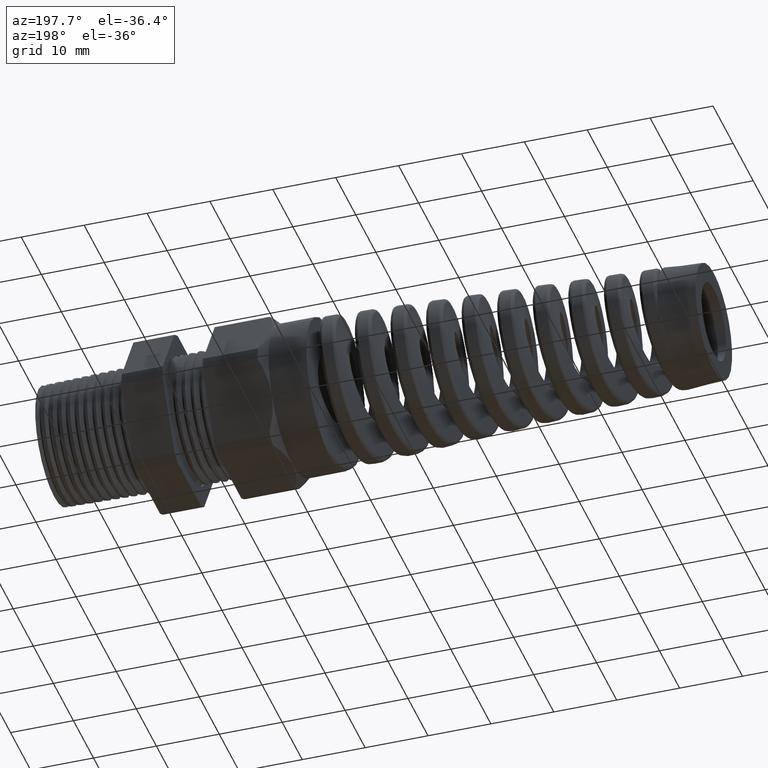
[diagram: clean part render]
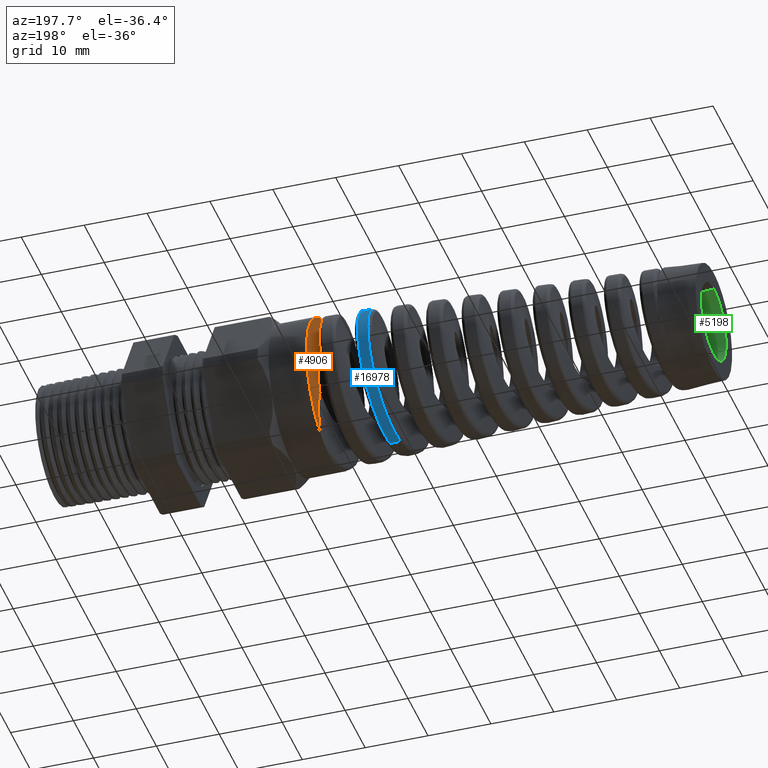
[diagram: same view with three faces highlighted in distinct colors, each labeled with its STEP entity id]
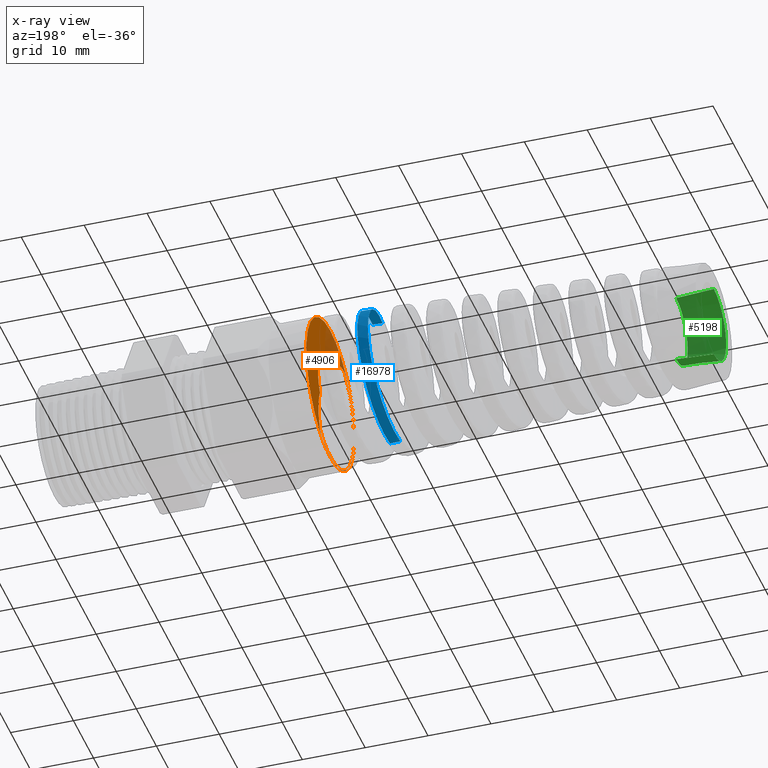
[diagram: x-ray of the same camera — body ghosted, the three highlighted faces saturated]
A machine part, auxiliary view with three faces highlighted in distinct colors.
The next image is the same camera in x-ray (body ghosted, the three faces saturated) — at least one of them is partly hidden behind the body in this view.
Their STEP definitions:

[orange] entity #4906 — the highlighted planar face has unit normal (-1, 0, 0).
#354 = CARTESIAN_POINT ( 'NONE',  ( -1.448820353894546600, 2.949912371775083200E-017, 0.2408786250720556800 ) ) ;
#355 = DIRECTION ( 'NONE',  ( 0.0000000000000000000, 0.0000000000000000000, 1.000000000000000000 ) ) ;
#356 = DIRECTION ( 'NONE',  ( -1.000000000000000000, 0.0000000000000000000, 0.0000000000000000000 ) ) ;
#357 = CARTESIAN_POINT ( 'NONE',  ( -1.448820353894546600, 0.0000000000000000000, 0.0000000000000000000 ) ) ;
#358 = AXIS2_PLACEMENT_3D ( 'NONE', #357, #356, #355 ) ;
#405 = CIRCLE ( 'NONE', #358, 0.2408786250720556800 ) ;
#454 = CARTESIAN_POINT ( 'NONE',  ( -1.448820353894546600, -0.03335962155743383400, 0.2385574305406326100 ) ) ;
#772 = EDGE_CURVE ( 'NONE', #7527, #7526, #4266, .T. ) ;
#4262 = DIRECTION ( 'NONE',  ( 0.0000000000000000000, 0.0000000000000000000, 1.000000000000000000 ) ) ;
#4263 = DIRECTION ( 'NONE',  ( -1.000000000000000000, 0.0000000000000000000, 0.0000000000000000000 ) ) ;
#4264 = CARTESIAN_POINT ( 'NONE',  ( -1.448820353894546600, 0.0000000000000000000, 0.0000000000000000000 ) ) ;
#4265 = AXIS2_PLACEMENT_3D ( 'NONE', #4264, #4263, #4262 ) ;
#4266 = CIRCLE ( 'NONE', #4265, 0.4699999999999999200 ) ;
#4828 = ORIENTED_EDGE ( 'NONE', *, *, #5226, .F. ) ;
#4829 = ORIENTED_EDGE ( 'NONE', *, *, #4830, .T. ) ;
#4830 = EDGE_CURVE ( 'NONE', #5220, #4831, #16705, .T. ) ;
#4831 = VERTEX_POINT ( 'NONE', #16704 ) ;
#4832 = ORIENTED_EDGE ( 'NONE', *, *, #4888, .T. ) ;
#4833 = VERTEX_POINT ( 'NONE', #16706 ) ;
#4888 = EDGE_CURVE ( 'NONE', #4831, #4833, #16743, .T. ) ;
#4889 = ORIENTED_EDGE ( 'NONE', *, *, #4890, .T. ) ;
#4890 = EDGE_CURVE ( 'NONE', #4833, #4891, #16801, .T. ) ;
#4891 = VERTEX_POINT ( 'NONE', #16796 ) ;
#4892 = ORIENTED_EDGE ( 'NONE', *, *, #4893, .T. ) ;
#4893 = EDGE_CURVE ( 'NONE', #4891, #4894, #16774, .T. ) ;
#4894 = VERTEX_POINT ( 'NONE', #16773 ) ;
#4895 = ORIENTED_EDGE ( 'NONE', *, *, #4896, .T. ) ;
#4896 = EDGE_CURVE ( 'NONE', #4894, #5282, #16882, .T. ) ;
#4897 = ORIENTED_EDGE ( 'NONE', *, *, #5281, .F. ) ;
#4898 = EDGE_LOOP ( 'NONE', ( #4899, #4900 ) ) ;
#4899 = ORIENTED_EDGE ( 'NONE', *, *, #772, .T. ) ;
#4900 = ORIENTED_EDGE ( 'NONE', *, *, #7579, .T. ) ;
#4906 = ADVANCED_FACE ( 'NONE', ( #16884, #16883 ), #16881, .T. ) ;
#4907 = EDGE_LOOP ( 'NONE', ( #4828, #4829, #4832, #4889, #4892, #4895, #4897 ) ) ;
#5220 = VERTEX_POINT ( 'NONE', #454 ) ;
#5226 = EDGE_CURVE ( 'NONE', #5220, #5227, #405, .T. ) ;
#5227 = VERTEX_POINT ( 'NONE', #354 ) ;
#5281 = EDGE_CURVE ( 'NONE', #5227, #5282, #7751, .T. ) ;
#5282 = VERTEX_POINT ( 'NONE', #7752 ) ;
#7526 = VERTEX_POINT ( 'NONE', #11925 ) ;
#7527 = VERTEX_POINT ( 'NONE', #11924 ) ;
#7579 = EDGE_CURVE ( 'NONE', #7526, #7527, #11949, .T. ) ;
#7747 = DIRECTION ( 'NONE',  ( 0.0000000000000000000, 0.0000000000000000000, 1.000000000000000000 ) ) ;
#7748 = DIRECTION ( 'NONE',  ( -1.000000000000000000, 0.0000000000000000000, 0.0000000000000000000 ) ) ;
#7749 = CARTESIAN_POINT ( 'NONE',  ( -1.448820353894546600, 0.0000000000000000000, 0.0000000000000000000 ) ) ;
#7750 = AXIS2_PLACEMENT_3D ( 'NONE', #7749, #7748, #7747 ) ;
#7751 = CIRCLE ( 'NONE', #7750, 0.2408786250720556800 ) ;
#7752 = CARTESIAN_POINT ( 'NONE',  ( -1.448820353894546300, 0.2021601561867379400, -0.1309724523216911400 ) ) ;
#11924 = CARTESIAN_POINT ( 'NONE',  ( -1.448820353894546600, 0.0000000000000000000, -0.4699999999999999200 ) ) ;
#11925 = CARTESIAN_POINT ( 'NONE',  ( -1.448820353894546600, 5.755839955992559700E-017, 0.4699999999999999200 ) ) ;
#11946 = DIRECTION ( 'NONE',  ( 0.0000000000000000000, 0.0000000000000000000, 1.000000000000000000 ) ) ;
#11947 = DIRECTION ( 'NONE',  ( -1.000000000000000000, 0.0000000000000000000, 0.0000000000000000000 ) ) ;
#11948 = AXIS2_PLACEMENT_3D ( 'NONE', #11955, #11947, #11946 ) ;
#11949 = CIRCLE ( 'NONE', #11948, 0.4699999999999999200 ) ;
#11955 = CARTESIAN_POINT ( 'NONE',  ( -1.448820353894546600, 0.0000000000000000000, 0.0000000000000000000 ) ) ;
#15977 = CARTESIAN_POINT ( 'NONE',  ( -1.448820353894546600, 0.2020614904284348500, -0.4038720716997567500 ) ) ;
#15979 = CARTESIAN_POINT ( 'NONE',  ( -1.448820353894546800, 0.1961061755179350500, -0.4091813848875616200 ) ) ;
#15982 = CARTESIAN_POINT ( 'NONE',  ( -1.448820353894546300, 0.2011171416932737400, -0.4048065078539921400 ) ) ;
#15983 = CARTESIAN_POINT ( 'NONE',  ( -1.448820353894546600, 0.009580785480131354500, -0.4667462132190382000 ) ) ;
#15989 = CARTESIAN_POINT ( 'NONE',  ( -1.448820353894545900, 0.2051431204508301100, -0.3995559992674126400 ) ) ;
#15990 = CARTESIAN_POINT ( 'NONE',  ( -1.448820353894546800, 0.1852642701325114000, -0.4168786529739144100 ) ) ;
#15991 = CARTESIAN_POINT ( 'NONE',  ( -1.448820353894546600, 0.2038085467612479900, -0.4018648567178028700 ) ) ;
#15992 = CARTESIAN_POINT ( 'NONE',  ( -1.448820353894546800, 0.1716136678479203700, -0.4251129430816107400 ) ) ;
#15993 = CARTESIAN_POINT ( 'NONE',  ( -1.448820353894546600, 0.1128127490869487900, -0.4493090088299454000 ) ) ;
#15996 = CARTESIAN_POINT ( 'NONE',  ( -1.448820353894546300, 0.1427345852049202700, -0.4386438970424701400 ) ) ;
#15997 = CARTESIAN_POINT ( 'NONE',  ( -1.448820353894546600, 0.1621148569472861700, -0.4299428423449827600 ) ) ;
#15998 = CARTESIAN_POINT ( 'NONE',  ( -1.448820353894546600, 0.1027283960472076300, -0.4522496813160216700 ) ) ;
#16001 = CARTESIAN_POINT ( 'NONE',  ( -1.448820353894546800, 0.05155632327928163400, -0.4631929127222383400 ) ) ;
#16002 = CARTESIAN_POINT ( 'NONE',  ( -1.448820353894546600, 0.2046563651635453800, -0.4008139720980719600 ) ) ;
#16005 = CARTESIAN_POINT ( 'NONE',  ( -1.448820353894546600, 0.07222455385863065000, -0.4598149112405836600 ) ) ;
#16006 = CARTESIAN_POINT ( 'NONE',  ( -1.448820353894546600, 0.1897293611852609600, -0.4139677696131632300 ) ) ;
#16007 = CARTESIAN_POINT ( 'NONE',  ( -1.448820353894546600, 0.1327989262014308600, -0.4425129285515522800 ) ) ;
#16008 = CARTESIAN_POINT ( 'NONE',  ( -1.448820353894546600, 0.1981861122203166200, -0.4075141148318242600 ) ) ;
#16688 = CARTESIAN_POINT ( 'NONE',  ( -1.448820353894461500, -0.2721263528142422400, 0.3551348036856661300 ) ) ;
#16689 = CARTESIAN_POINT ( 'NONE',  ( -1.448820353894545900, -0.2493149174953376300, 0.3533600258025658700 ) ) ;
#16690 = CARTESIAN_POINT ( 'NONE',  ( -1.448820353894546800, -0.2269148690472160800, 0.3497403473172283100 ) ) ;
#16691 = CARTESIAN_POINT ( 'NONE',  ( -1.448820353894546300, -0.1939723128528591500, 0.3413621391178656200 ) ) ;
#16692 = CARTESIAN_POINT ( 'NONE',  ( -1.448820353894547000, -0.1831016970211133100, 0.3380750389694154300 ) ) ;
#16693 = CARTESIAN_POINT ( 'NONE',  ( -1.448820353894546600, -0.1615977448715757700, 0.3304367378241687100 ) ) ;
#16694 = CARTESIAN_POINT ( 'NONE',  ( -1.448820353894546800, -0.1509582700809000400, 0.3260754442274743600 ) ) ;
#16695 = CARTESIAN_POINT ( 'NONE',  ( -1.448820353894546600, -0.1200431909144627600, 0.3115489787078768400 ) ) ;
#16696 = CARTESIAN_POINT ( 'NONE',  ( -1.448820353894545700, -0.1005495694154866600, 0.2998972208566764700 ) ) ;
#16697 = CARTESIAN_POINT ( 'NONE',  ( -1.448820353894545900, -0.06411974060964961700, 0.2720868642342828500 ) ) ;
#16698 = CARTESIAN_POINT ( 'NONE',  ( -1.448820353894545900, -0.04767586130611412700, 0.2562804781732810900 ) ) ;
#16699 = CARTESIAN_POINT ( 'NONE',  ( -1.448820353894546600, -0.03335962155743383400, 0.2385574305406326100 ) ) ;
#16704 = CARTESIAN_POINT ( 'NONE',  ( -1.448820353894461500, -0.2721263528142422400, 0.3551348036856661300 ) ) ;
#16705 = B_SPLINE_CURVE_WITH_KNOTS ( 'NONE', 3,
 ( #16699, #16698, #16697, #16696, #16695, #16694, #16693, #16692, #16691, #16690, #16689, #16688 ),
 .UNSPECIFIED., .F., .F.,
 ( 4, 2, 2, 2, 2, 4 ),
 ( 0.0004915076693157270500, 0.002221967812002094500, 0.003952427954688461600, 0.004817658026031645400, 0.005682888097374829200, 0.007413348240061196800 ),
 .UNSPECIFIED. ) ;
#16706 = CARTESIAN_POINT ( 'NONE',  ( -1.448820353894546600, -0.4428089962230025700, 0.1469596787728060500 ) ) ;
#16743 = B_SPLINE_CURVE_WITH_KNOTS ( 'NONE', 3,
 ( #16795, #16794, #16793, #16792, #16791, #16790, #16789, #16788, #16787, #16786, #16785, #16784, #16783, #16782, #16781, #16780, #16779, #16778, #16777, #16776 ),
 .UNSPECIFIED., .F., .F.,
 ( 4, 2, 2, 2, 2, 2, 2, 2, 2, 4 ),
 ( 8.673617379884034500E-019, 0.0001109991483392927300, 0.0002219982966785845800, 0.0004439965933571662900, 0.0008879931867143322600, 0.001775986373428669300, 0.002663979560143006100, 0.003551972746857343400, 0.005327959120286022600, 0.007103945493714701500 ),
 .UNSPECIFIED. ) ;
#16772 = CARTESIAN_POINT ( 'NONE',  ( -1.448820353894597400, -0.01175721740759511100, -0.4668936745595238500 ) ) ;
#16773 = CARTESIAN_POINT ( 'NONE',  ( -1.448820353894545900, 0.2051431204508301100, -0.3995559992674126400 ) ) ;
#16774 = B_SPLINE_CURVE_WITH_KNOTS ( 'NONE', 3,
 ( #16775, #16772, #15983, #16001, #16005, #15998, #15993, #16007, #15996, #15997, #15992, #15990, #16006, #15979, #16008, #15982, #15977, #15991, #16002, #15989 ),
 .UNSPECIFIED., .F., .F.,
 ( 4, 2, 2, 2, 2, 2, 2, 2, 2, 4 ),
 ( 0.0000000000000000000, 0.001616291713955990200, 0.003232583427911980400, 0.004040729284889974300, 0.004848875141867968600, 0.005657020998845963900, 0.006061093927334960600, 0.006263130391579461100, 0.006364148623701711800, 0.006465166855823962500 ),
 .UNSPECIFIED. ) ;
#16775 = CARTESIAN_POINT ( 'NONE',  ( -1.448820353894597600, -0.03294053930283547700, -0.4653943222595928700 ) ) ;
#16776 = CARTESIAN_POINT ( 'NONE',  ( -1.448820353894546600, -0.4428089962230025700, 0.1469596787728060500 ) ) ;
#16777 = CARTESIAN_POINT ( 'NONE',  ( -1.448820353894545900, -0.4354923246232088000, 0.1690057803555805900 ) ) ;
#16778 = CARTESIAN_POINT ( 'NONE',  ( -1.448820353894546800, -0.4263060439832192000, 0.1904154309027992500 ) ) ;
#16779 = CARTESIAN_POINT ( 'NONE',  ( -1.448820353894546300, -0.4047252417156458900, 0.2309619726242103900 ) ) ;
#16780 = CARTESIAN_POINT ( 'NONE',  ( -1.448820353894546800, -0.3923047213816414600, 0.2502255226187223300 ) ) ;
#16781 = CARTESIAN_POINT ( 'NONE',  ( -1.448820353894546300, -0.3710821870084007300, 0.2775154754607221900 ) ) ;
#16782 = CARTESIAN_POINT ( 'NONE',  ( -1.448820353894546800, -0.3635344296179492400, 0.2863819504981280900 ) ) ;
#16783 = CARTESIAN_POINT ( 'NONE',  ( -1.448820353894546600, -0.3476966869114141400, 0.3032922236084568700 ) ) ;
#16784 = CARTESIAN_POINT ( 'NONE',  ( -1.448820353894547000, -0.3394192806897227100, 0.3113361504279737500 ) ) ;
#16785 = CARTESIAN_POINT ( 'NONE',  ( -1.448820353894546600, -0.3220636809174137200, 0.3265055674661684900 ) ) ;
#16786 = CARTESIAN_POINT ( 'NONE',  ( -1.448820353894547000, -0.3130018644619247900, 0.3336498408536579500 ) ) ;
#16787 = CARTESIAN_POINT ( 'NONE',  ( -1.448820353894546600, -0.2985559787533573200, 0.3433877460512957400 ) ) ;
#16788 = CARTESIAN_POINT ( 'NONE',  ( -1.448820353894546300, -0.2935851537153360000, 0.3464841714009659300 ) ) ;
#16789 = CARTESIAN_POINT ( 'NONE',  ( -1.448820353894546600, -0.2858891781379445700, 0.3505982104636064500 ) ) ;
#16790 = CARTESIAN_POINT ( 'NONE',  ( -1.448820353894546600, -0.2832821755531561000, 0.3518874877695071200 ) ) ;
#16791 = CARTESIAN_POINT ( 'NONE',  ( -1.448820353894545900, -0.2792349663209615100, 0.3535522103417446100 ) ) ;
#16792 = CARTESIAN_POINT ( 'NONE',  ( -1.448820353894546600, -0.2778542707668484900, 0.3540662984631569600 ) ) ;
#16793 = CARTESIAN_POINT ( 'NONE',  ( -1.448820353894546600, -0.2750427540938603100, 0.3548814760643455600 ) ) ;
#16794 = CARTESIAN_POINT ( 'NONE',  ( -1.448820353894461700, -0.2736300380557659100, 0.3552517935757610300 ) ) ;
#16795 = CARTESIAN_POINT ( 'NONE',  ( -1.448820353894461500, -0.2721263528142422400, 0.3551348036856661300 ) ) ;
#16796 = CARTESIAN_POINT ( 'NONE',  ( -1.448820353894597600, -0.03294053930283547700, -0.4653943222595928700 ) ) ;
#16797 = DIRECTION ( 'NONE',  ( 0.0000000000000000000, 0.0000000000000000000, 1.000000000000000000 ) ) ;
#16798 = DIRECTION ( 'NONE',  ( 1.000000000000000000, 0.0000000000000000000, 0.0000000000000000000 ) ) ;
#16799 = CARTESIAN_POINT ( 'NONE',  ( -1.448820353894546600, 0.0000000000000000000, 0.0000000000000000000 ) ) ;
#16800 = AXIS2_PLACEMENT_3D ( 'NONE', #16799, #16798, #16797 ) ;
#16801 = CIRCLE ( 'NONE', #16800, 0.4665586290285814200 ) ;
#16863 = DIRECTION ( 'NONE',  ( 0.0000000000000000000, 0.0000000000000000000, 1.000000000000000000 ) ) ;
#16864 = DIRECTION ( 'NONE',  ( -1.000000000000000000, 0.0000000000000000000, 0.0000000000000000000 ) ) ;
#16865 = CARTESIAN_POINT ( 'NONE',  ( -1.448820353894546300, 0.2021601561867379400, -0.1309724523216911400 ) ) ;
#16866 = CARTESIAN_POINT ( 'NONE',  ( -1.448820353894545700, 0.2072231517698748500, -0.1413642909500169600 ) ) ;
#16867 = CARTESIAN_POINT ( 'NONE',  ( -1.448820353894546300, 0.2116043623677465500, -0.1520479544771982100 ) ) ;
#16868 = CARTESIAN_POINT ( 'NONE',  ( -1.448820353894546600, 0.2190726070071457900, -0.1739692288181992100 ) ) ;
#16869 = CARTESIAN_POINT ( 'NONE',  ( -1.448820353894545900, 0.2221528326000351300, -0.1852275250048633600 ) ) ;
#16870 = CARTESIAN_POINT ( 'NONE',  ( -1.448820353894545900, 0.2293500224318219000, -0.2189832126127909400 ) ) ;
#16871 = CARTESIAN_POINT ( 'NONE',  ( -1.448820353894546600, 0.2315534931123896800, -0.2417313462586490900 ) ) ;
#16872 = CARTESIAN_POINT ( 'NONE',  ( -1.448820353894545900, 0.2314191754249948500, -0.2761774508687775400 ) ) ;
#16873 = CARTESIAN_POINT ( 'NONE',  ( -1.448820353894546300, 0.2307886175061127600, -0.2877682314581507300 ) ) ;
#16874 = CARTESIAN_POINT ( 'NONE',  ( -1.448820353894546800, 0.2284140730746141700, -0.3107897675158301500 ) ) ;
#16875 = CARTESIAN_POINT ( 'NONE',  ( -1.448820353894546600, 0.2266818306708347200, -0.3221691710708107800 ) ) ;
#16876 = CARTESIAN_POINT ( 'NONE',  ( -1.448820353894546300, 0.2199720318625012800, -0.3559426574653077900 ) ) ;
#16877 = CARTESIAN_POINT ( 'NONE',  ( -1.448820353894546600, 0.2134936076841694200, -0.3779749577527472000 ) ) ;
#16878 = CARTESIAN_POINT ( 'NONE',  ( -1.448820353894545900, 0.2051431204508301100, -0.3995559992674126400 ) ) ;
#16879 = CARTESIAN_POINT ( 'NONE',  ( -1.448820353894546600, 0.0000000000000000000, 0.0000000000000000000 ) ) ;
#16880 = AXIS2_PLACEMENT_3D ( 'NONE', #16879, #16864, #16863 ) ;
#16881 = PLANE ( 'NONE',  #16880 ) ;
#16882 = B_SPLINE_CURVE_WITH_KNOTS ( 'NONE', 3,
 ( #16878, #16877, #16876, #16875, #16874, #16873, #16872, #16871, #16870, #16869, #16868, #16867, #16866, #16865 ),
 .UNSPECIFIED., .F., .F.,
 ( 4, 2, 2, 2, 2, 2, 4 ),
 ( 0.0001419659841493560600, 0.001889761936196980800, 0.002763659912220792700, 0.003637557888244607700, 0.005385353840292238400, 0.006259251816316053300, 0.007133149792339868300 ),
 .UNSPECIFIED. ) ;
#16883 = FACE_OUTER_BOUND ( 'NONE', #4898, .T. ) ;
#16884 = FACE_BOUND ( 'NONE', #4907, .T. ) ;

[blue] entity #16978 — the highlighted conical surface has half-angle 2.5 deg.
#14116 = DIRECTION ( 'NONE',  ( 0.9990482215818576900, 0.0000000000000000000, -0.04361938736533631200 ) ) ;
#14117 = VECTOR ( 'NONE', #14116, 39.37007874015748100 ) ;
#14119 = CARTESIAN_POINT ( 'NONE',  ( -1.369999999999999900, 0.0000000000000000000, -0.4699999999999999700 ) ) ;
#14120 = LINE ( 'NONE', #14119, #14117 ) ;
#14131 = CARTESIAN_POINT ( 'NONE',  ( -1.822040881429618700, 5.096541791137408800E-013, -0.4502634688835878100 ) ) ;
#14303 = CARTESIAN_POINT ( 'NONE',  ( -1.761257017529631200, 0.4468046488174056100, 0.07564320165449360500 ) ) ;
#14304 = CARTESIAN_POINT ( 'NONE',  ( -1.757809340060459700, 0.4380420694168157800, 0.1194918324233043800 ) ) ;
#14307 = CARTESIAN_POINT ( 'NONE',  ( -1.755544896219090300, 0.4294275797834336000, 0.1477263735582237100 ) ) ;
#14309 = CARTESIAN_POINT ( 'NONE',  ( -1.752128767299149700, 0.4124741950551973900, 0.1886215747762190800 ) ) ;
#14310 = CARTESIAN_POINT ( 'NONE',  ( -1.750987011449980800, 0.4061462922027455600, 0.2020088122152971800 ) ) ;
#14312 = CARTESIAN_POINT ( 'NONE',  ( -1.748687315151896000, 0.3920991509197268600, 0.2282798259128979200 ) ) ;
#14314 = CARTESIAN_POINT ( 'NONE',  ( -1.747533117465403200, 0.3843950883842104400, 0.2411159806779676100 ) ) ;
#14316 = CARTESIAN_POINT ( 'NONE',  ( -1.744108794239781300, 0.3596998520321175700, 0.2780393331708604400 ) ) ;
#14317 = CARTESIAN_POINT ( 'NONE',  ( -1.741851798874636700, 0.3409990863555979500, 0.3008319111185008300 ) ) ;
#14319 = CARTESIAN_POINT ( 'NONE',  ( -1.738430761906552200, 0.3095927995241541900, 0.3322794945339343500 ) ) ;
#14321 = CARTESIAN_POINT ( 'NONE',  ( -1.737278185216293300, 0.2984955114457807400, 0.3423529360480159200 ) ) ;
#14323 = CARTESIAN_POINT ( 'NONE',  ( -1.734985187286576200, 0.2754928615395048100, 0.3612474127370969300 ) ) ;
#14324 = CARTESIAN_POINT ( 'NONE',  ( -1.733845986557382500, 0.2636068129160392100, 0.3700658774771743400 ) ) ;
#14326 = CARTESIAN_POINT ( 'NONE',  ( -1.730435069461946100, 0.2268259046410669700, 0.3946841146902044800 ) ) ;
#14328 = CARTESIAN_POINT ( 'NONE',  ( -1.728172464612168600, 0.2008187379429952900, 0.4086642074342938200 ) ) ;
#14329 = CARTESIAN_POINT ( 'NONE',  ( -1.724733432000420400, 0.1595093044055275200, 0.4258643213729566000 ) ) ;
#14331 = CARTESIAN_POINT ( 'NONE',  ( -1.723587548133073100, 0.1454558669659717400, 0.4309154502506916700 ) ) ;
#14333 = CARTESIAN_POINT ( 'NONE',  ( -1.721313834762431700, 0.1171556922323973300, 0.4395569805197753200 ) ) ;
#14334 = CARTESIAN_POINT ( 'NONE',  ( -1.719049091902859600, 0.08855293848782874700, 0.4467841778985683900 ) ) ;
#14336 = CARTESIAN_POINT ( 'NONE',  ( -1.716779821678874100, 0.05935345605739934800, 0.4512138873614337000 ) ) ;
#14338 = CARTESIAN_POINT ( 'NONE',  ( -1.714498253804540800, 0.02985122258853168500, 0.4542205866170148100 ) ) ;
#14340 = CARTESIAN_POINT ( 'NONE',  ( -1.713345062118319900, 0.01486718116825785900, 0.4550092308449323300 ) ) ;
#14341 = CARTESIAN_POINT ( 'NONE',  ( -1.712202162727100900, -3.123575576925645000E-016, 0.4550591309100025500 ) ) ;
#14344 = B_SPLINE_CURVE_WITH_KNOTS ( 'NONE', 3,
 ( #14341, #14340, #14338, #14336, #14334, #14333, #14331, #14329, #14328, #14326, #14324, #14323, #14321, #14319, #14317, #14316, #14314, #14312, #14310, #14309, #14307, #14304, #14303, #14453, #14451, #14450, #14448, #14446, #14444, #14443, #14441, #14439, #14437, #14436, #14434, #14432, #14430, #14429, #14427, #14425, #14423, #14422, #14420, #14418, #14416, #14415, #14413, #14411, #14409, #14408, #14406 ),
 .UNSPECIFIED., .F., .F.,
 ( 4, 2, 1, 2, 2, 2, 2, 2, 2, 2, 2, 2, 2, 2, 2, 2, 2, 2, 2, 2, 2, 2, 2, 2, 2, 4 ),
 ( 0.08905529058756787900, 0.09019516613580699800, 0.09133504168404613100, 0.09247491723228525000, 0.09361479278052438300, 0.09589454387700263600, 0.09703441942524175500, 0.09817429497348087500, 0.1004540460699591300, 0.1015939216181982500, 0.1027337971664373800, 0.1050135482629156500, 0.1061534238111547700, 0.1072932993593939000, 0.1084331749076330300, 0.1095730504558721500, 0.1118528015523504200, 0.1129926771005895500, 0.1141325526488286700, 0.1164123037453069400, 0.1175521792935460600, 0.1186920548417851900, 0.1209718059382634500, 0.1232515570347416900, 0.1243914325829808300, 0.1255313081312199600 ),
 .UNSPECIFIED. ) ;
#14406 = CARTESIAN_POINT ( 'NONE',  ( -1.822040881429618700, 5.096541791137408800E-013, -0.4502634688835878100 ) ) ;
#14408 = CARTESIAN_POINT ( 'NONE',  ( -1.820888725403704300, 0.01482660269356085900, -0.4503137731020401800 ) ) ;
#14409 = CARTESIAN_POINT ( 'NONE',  ( -1.819723694093071400, 0.02981613453249858800, -0.4496224490667018500 ) ) ;
#14411 = CARTESIAN_POINT ( 'NONE',  ( -1.817413255509757300, 0.05941472726539403400, -0.4467774735191904500 ) ) ;
#14413 = CARTESIAN_POINT ( 'NONE',  ( -1.816266353222032200, 0.07404810415716121800, -0.4446332183724990300 ) ) ;
#14415 = CARTESIAN_POINT ( 'NONE',  ( -1.812834842442627000, 0.1174612847230464800, -0.4360874402533395600 ) ) ;
#14416 = CARTESIAN_POINT ( 'NONE',  ( -1.810558030640458900, 0.1457588041742681800, -0.4275936056121821800 ) ) ;
#14418 = CARTESIAN_POINT ( 'NONE',  ( -1.805925301917044300, 0.2010067982122463200, -0.4047969618383501200 ) ) ;
#14420 = CARTESIAN_POINT ( 'NONE',  ( -1.803638982228812100, 0.2271129035747718500, -0.3908333749850261800 ) ) ;
#14422 = CARTESIAN_POINT ( 'NONE',  ( -1.800207463913810100, 0.2639110067806945700, -0.3662853167088415100 ) ) ;
#14423 = CARTESIAN_POINT ( 'NONE',  ( -1.799062991647800000, 0.2757908807476774900, -0.3574934355952843500 ) ) ;
#14425 = CARTESIAN_POINT ( 'NONE',  ( -1.796763152266821500, 0.2987612584358542200, -0.3386657838725126200 ) ) ;
#14427 = CARTESIAN_POINT ( 'NONE',  ( -1.795602937065781800, 0.3098877725287075300, -0.3285846483813437100 ) ) ;
#14429 = CARTESIAN_POINT ( 'NONE',  ( -1.792158402279606900, 0.3413665899180348100, -0.2970923128867416500 ) ) ;
#14430 = CARTESIAN_POINT ( 'NONE',  ( -1.789888290174476800, 0.3600613127164527500, -0.2742876985444238100 ) ) ;
#14432 = CARTESIAN_POINT ( 'NONE',  ( -1.786453181611919800, 0.3847043150189813400, -0.2374027528945953900 ) ) ;
#14434 = CARTESIAN_POINT ( 'NONE',  ( -1.785300397845111000, 0.3923658138245882400, -0.2246248804979578100 ) ) ;
#14436 = CARTESIAN_POINT ( 'NONE',  ( -1.782987537946890700, 0.4064278728574680100, -0.1982799128091515800 ) ) ;
#14437 = CARTESIAN_POINT ( 'NONE',  ( -1.781840745804035700, 0.4127518020378896400, -0.1848646211026617200 ) ) ;
#14439 = CARTESIAN_POINT ( 'NONE',  ( -1.778415126010419700, 0.4296708817530234800, -0.1439149616349511600 ) ) ;
#14441 = CARTESIAN_POINT ( 'NONE',  ( -1.776149242625625100, 0.4382325317524674000, -0.1156835323093201300 ) ) ;
#14443 = CARTESIAN_POINT ( 'NONE',  ( -1.772702656988917500, 0.4469127987053060400, -0.07191572469992192600 ) ) ;
#14444 = CARTESIAN_POINT ( 'NONE',  ( -1.771545000956759900, 0.4490985224472414700, -0.05707590644910308400 ) ) ;
#14446 = CARTESIAN_POINT ( 'NONE',  ( -1.769253396093740000, 0.4519707447381270900, -0.02757063722723878900 ) ) ;
#14448 = CARTESIAN_POINT ( 'NONE',  ( -1.768113006146149400, 0.4526763912958216000, -0.01282363951911586600 ) ) ;
#14450 = CARTESIAN_POINT ( 'NONE',  ( -1.765833373785036900, 0.4526510390288336900, 0.01665853217129863900 ) ) ;
#14451 = CARTESIAN_POINT ( 'NONE',  ( -1.764694205077702600, 0.4519200225044957000, 0.03139371172882200100 ) ) ;
#14453 = CARTESIAN_POINT ( 'NONE',  ( -1.762408945642773400, 0.4490041543076420100, 0.06085147811858860500 ) ) ;
#14483 = DIRECTION ( 'NONE',  ( 0.0000000000000000000, 0.0000000000000000000, -1.000000000000000000 ) ) ;
#14485 = DIRECTION ( 'NONE',  ( 1.000000000000000000, 0.0000000000000000000, 0.0000000000000000000 ) ) ;
#14486 = AXIS2_PLACEMENT_3D ( 'NONE', #14492, #14485, #14483 ) ;
#14487 = CONICAL_SURFACE ( 'NONE', #14486, 0.4699999999999999700, 0.04363323129985854900 ) ;
#14492 = CARTESIAN_POINT ( 'NONE',  ( -1.369999999999999900, 0.0000000000000000000, 0.0000000000000000000 ) ) ;
#14494 = FACE_OUTER_BOUND ( 'NONE', #16935, .T. ) ;
#14520 = CARTESIAN_POINT ( 'NONE',  ( -1.792820941406120500, 0.1988492649791344900, 0.4056677219928064300 ) ) ;
#14522 = CARTESIAN_POINT ( 'NONE',  ( -1.795123748930672400, 0.2249751896484063200, 0.3916665763240070300 ) ) ;
#14524 = CARTESIAN_POINT ( 'NONE',  ( -1.796277561251411700, 0.2377074905555336100, 0.3840090508662502000 ) ) ;
#14525 = CARTESIAN_POINT ( 'NONE',  ( -1.799710113977904800, 0.2743710448449361300, 0.3594471000227311100 ) ) ;
#14527 = CARTESIAN_POINT ( 'NONE',  ( -1.801978560725075600, 0.2970170370024053900, 0.3408460617272124300 ) ) ;
#14529 = CARTESIAN_POINT ( 'NONE',  ( -1.805412118669837800, 0.3282728183314786400, 0.3095893740890358600 ) ) ;
#14531 = CARTESIAN_POINT ( 'NONE',  ( -1.806568844695134500, 0.3382864687117815800, 0.2985411728689125700 ) ) ;
#14532 = CARTESIAN_POINT ( 'NONE',  ( -1.808866668307090900, 0.3570379957348783200, 0.2756772849512071900 ) ) ;
#14534 = CARTESIAN_POINT ( 'NONE',  ( -1.810008619419166900, 0.3657909476262681300, 0.2638607620761887500 ) ) ;
#14536 = CARTESIAN_POINT ( 'NONE',  ( -1.813431109076586200, 0.3902261942890463700, 0.2272866995524978600 ) ) ;
#14538 = CARTESIAN_POINT ( 'NONE',  ( -1.815708743723587300, 0.4041024054702431200, 0.2014155119944505400 ) ) ;
#14539 = CARTESIAN_POINT ( 'NONE',  ( -1.819176657457186800, 0.4211589840344792700, 0.1602969573176711800 ) ) ;
#14541 = CARTESIAN_POINT ( 'NONE',  ( -1.820328692264962200, 0.4261506043476230300, 0.1463430287951748800 ) ) ;
#14543 = CARTESIAN_POINT ( 'NONE',  ( -1.822616448596078700, 0.4346919190309779200, 0.1182099850386352200 ) ) ;
#14545 = CARTESIAN_POINT ( 'NONE',  ( -1.823755601207184300, 0.4382585041826371800, 0.1039904201452412400 ) ) ;
#14546 = CARTESIAN_POINT ( 'NONE',  ( -1.826036772781427100, 0.4439960151253966600, 0.07524889754895963700 ) ) ;
#14547 = CARTESIAN_POINT ( 'NONE',  ( -1.827178774543248600, 0.4461669766969741400, 0.06072694622732851400 ) ) ;
#14548 = CARTESIAN_POINT ( 'NONE',  ( -1.829477377452833200, 0.4490857182916444000, 0.03137562240415629100 ) ) ;
#14549 = CARTESIAN_POINT ( 'NONE',  ( -1.830639824345830400, 0.4498288975311160500, 0.01647120109646450400 ) ) ;
#14550 = CARTESIAN_POINT ( 'NONE',  ( -1.834097027433388500, 0.4498456820445435600, -0.02783339042555219000 ) ) ;
#14551 = CARTESIAN_POINT ( 'NONE',  ( -1.836375001192944300, 0.4469753592167554100, -0.05700868907232146300 ) ) ;
#14552 = CARTESIAN_POINT ( 'NONE',  ( -1.840954720582554700, 0.4355620675289818000, -0.1146423709829998100 ) ) ;
#14553 = CARTESIAN_POINT ( 'NONE',  ( -1.843278971106104400, 0.4268766112418419000, -0.1433266641084317800 ) ) ;
#14554 = CARTESIAN_POINT ( 'NONE',  ( -1.847865248548406600, 0.4043941294649920900, -0.1976149052713792000 ) ) ;
#14556 = CARTESIAN_POINT ( 'NONE',  ( -1.850146549094456600, 0.3905934319534072300, -0.2234782159987053200 ) ) ;
#14557 = CARTESIAN_POINT ( 'NONE',  ( -1.853609845877750600, 0.3659932704884068000, -0.2603167648319740200 ) ) ;
#14558 = CARTESIAN_POINT ( 'NONE',  ( -1.854774442103824100, 0.3571010227573938000, -0.2723024884610597000 ) ) ;
#14559 = CARTESIAN_POINT ( 'NONE',  ( -1.857078012342326900, 0.3383744947954029900, -0.2950969554316275600 ) ) ;
#14560 = CARTESIAN_POINT ( 'NONE',  ( -1.859367802053903500, 0.3186331085548613200, -0.3168412661041222200 ) ) ;
#14561 = CARTESIAN_POINT ( 'NONE',  ( -1.861655404639487300, 0.2969017065881555100, -0.3365235379148861000 ) ) ;
#14562 = CARTESIAN_POINT ( 'NONE',  ( -1.863953750661532500, 0.2741662905825727500, -0.3551641187009429400 ) ) ;
#14563 = CARTESIAN_POINT ( 'NONE',  ( -1.865111706588957800, 0.2622602126448867500, -0.3639877056318873700 ) ) ;
#14564 = CARTESIAN_POINT ( 'NONE',  ( -1.868596673904356000, 0.2252163978269885700, -0.3886762126276427400 ) ) ;
#14565 = CARTESIAN_POINT ( 'NONE',  ( -1.870886266353911600, 0.1992898319177533200, -0.4024484950429665400 ) ) ;
#14566 = CARTESIAN_POINT ( 'NONE',  ( -1.874327267238889100, 0.1586217742556728600, -0.4192144358540829700 ) ) ;
#14567 = CARTESIAN_POINT ( 'NONE',  ( -1.875475889714674200, 0.1447672388968584400, -0.4241495367914016000 ) ) ;
#14569 = CARTESIAN_POINT ( 'NONE',  ( -1.877789337671541500, 0.1164463687440285000, -0.4326778800908756000 ) ) ;
#14570 = CARTESIAN_POINT ( 'NONE',  ( -1.878954340285434700, 0.1019756798815294600, -0.4362609472457341100 ) ) ;
#14571 = CARTESIAN_POINT ( 'NONE',  ( -1.882414686143368800, 0.05860567167067742800, -0.4447513418945646700 ) ) ;
#14572 = CARTESIAN_POINT ( 'NONE',  ( -1.884702352653078800, 0.02943138902145532200, -0.4475276099659683500 ) ) ;
#14573 = CARTESIAN_POINT ( 'NONE',  ( -1.887011458288743200, -4.772883062602677700E-013, -0.4474267922366084200 ) ) ;
#14574 = B_SPLINE_CURVE_WITH_KNOTS ( 'NONE', 3,
 ( #14573, #14572, #14571, #14570, #14569, #14567, #14566, #14565, #14564, #14563, #14562, #14561, #14560, #14559, #14558, #14557, #14556, #14554, #14553, #14552, #14551, #14550, #14549, #14548, #14547, #14546, #14545, #14543, #14541, #14539, #14538, #14536, #14534, #14532, #14531, #14529, #14527, #14525, #14524, #14522, #14520, #14614, #14613, #14612, #14611, #14610, #14609, #14608, #14607 ),
 .UNSPECIFIED., .F., .F.,
 ( 4, 2, 2, 2, 2, 2, 1, 2, 2, 2, 2, 2, 2, 2, 2, 2, 2, 2, 2, 2, 2, 2, 2, 2, 4 ),
 ( 0.5195365549092706400, 0.5218117847355976400, 0.5229493996487610800, 0.5240870145619245200, 0.5263622443882515200, 0.5274998593014149600, 0.5286374742145785200, 0.5297750891277419600, 0.5309127040409054000, 0.5331879338672324000, 0.5354631636935594000, 0.5377383935198862800, 0.5388760084330498400, 0.5400136233462132800, 0.5411512382593767200, 0.5422888531725402700, 0.5445640829988671600, 0.5457016979120307100, 0.5468393128251941600, 0.5491145426515211500, 0.5502521575646846000, 0.5513897724778480400, 0.5536650023041750400, 0.5548026172173385900, 0.5559402321305020300 ),
 .UNSPECIFIED. ) ;
#14607 = CARTESIAN_POINT ( 'NONE',  ( -1.776839634250644100, -4.708361543883943300E-013, 0.4522369979560625400 ) ) ;
#14608 = CARTESIAN_POINT ( 'NONE',  ( -1.777976215575911300, 0.01465189297870726600, 0.4521873737437242500 ) ) ;
#14609 = CARTESIAN_POINT ( 'NONE',  ( -1.779113741141150400, 0.02930254499337526700, 0.4514273505536940400 ) ) ;
#14610 = CARTESIAN_POINT ( 'NONE',  ( -1.781400487450781600, 0.05860056776003967600, 0.4484651504670913400 ) ) ;
#14611 = CARTESIAN_POINT ( 'NONE',  ( -1.782556004923651100, 0.07332730057045269700, 0.4462451635734186500 ) ) ;
#14612 = CARTESIAN_POINT ( 'NONE',  ( -1.786001747498244400, 0.1168489539241211600, 0.4374688909823396000 ) ) ;
#14613 = CARTESIAN_POINT ( 'NONE',  ( -1.788263754439378000, 0.1448944763171203500, 0.4288754835031409800 ) ) ;
#14614 = CARTESIAN_POINT ( 'NONE',  ( -1.791678974188714000, 0.1855396949191940000, 0.4119745503983631200 ) ) ;
#14658 = CARTESIAN_POINT ( 'NONE',  ( -1.776839634250644100, -4.708361543883943300E-013, 0.4522369979560625400 ) ) ;
#14659 = CARTESIAN_POINT ( 'NONE',  ( -1.712202162727100900, -3.123575576925645000E-016, 0.4550591309100025500 ) ) ;
#14664 = CARTESIAN_POINT ( 'NONE',  ( -1.887011458288743200, -4.772883062602677700E-013, -0.4474267922366084200 ) ) ;
#14774 = DIRECTION ( 'NONE',  ( 0.9990482215818576900, 5.341834311772761800E-018, 0.04361938736533631200 ) ) ;
#14775 = VECTOR ( 'NONE', #14774, 39.37007874015748100 ) ;
#14776 = CARTESIAN_POINT ( 'NONE',  ( -1.369999999999999900, 5.755839955992559700E-017, 0.4699999999999999700 ) ) ;
#14777 = LINE ( 'NONE', #14776, #14775 ) ;
#16935 = EDGE_LOOP ( 'NONE', ( #17017, #17211, #17231, #16944 ) ) ;
#16937 = VERTEX_POINT ( 'NONE', #14131 ) ;
#16939 = EDGE_CURVE ( 'NONE', #17215, #16937, #14120, .T. ) ;
#16944 = ORIENTED_EDGE ( 'NONE', *, *, #16939, .F. ) ;
#16960 = EDGE_CURVE ( 'NONE', #17226, #16937, #14344, .T. ) ;
#16978 = ADVANCED_FACE ( 'NONE', ( #14494 ), #14487, .T. ) ;
#17017 = ORIENTED_EDGE ( 'NONE', *, *, #17075, .T. ) ;
#17075 = EDGE_CURVE ( 'NONE', #17215, #17227, #14574, .T. ) ;
#17211 = ORIENTED_EDGE ( 'NONE', *, *, #17230, .T. ) ;
#17215 = VERTEX_POINT ( 'NONE', #14664 ) ;
#17226 = VERTEX_POINT ( 'NONE', #14659 ) ;
#17227 = VERTEX_POINT ( 'NONE', #14658 ) ;
#17230 = EDGE_CURVE ( 'NONE', #17227, #17226, #14777, .T. ) ;
#17231 = ORIENTED_EDGE ( 'NONE', *, *, #16960, .T. ) ;

[green] entity #5198 — the highlighted conical surface has half-angle 3.5 deg.
#325 = CARTESIAN_POINT ( 'NONE',  ( -3.850000472440945600, 0.0000000000000000000, 0.2408786250720556800 ) ) ;
#326 = DIRECTION ( 'NONE',  ( 0.0000000000000000000, 0.0000000000000000000, 1.000000000000000000 ) ) ;
#327 = DIRECTION ( 'NONE',  ( -1.000000000000000000, 0.0000000000000000000, 0.0000000000000000000 ) ) ;
#328 = CARTESIAN_POINT ( 'NONE',  ( -3.850000472440945600, 0.0000000000000000000, 0.0000000000000000000 ) ) ;
#329 = AXIS2_PLACEMENT_3D ( 'NONE', #328, #327, #326 ) ;
#330 = CIRCLE ( 'NONE', #329, 0.2408786250720556800 ) ;
#331 = CARTESIAN_POINT ( 'NONE',  ( -3.850000472440945600, 2.949912371775083900E-017, -0.2408786250720556800 ) ) ;
#332 = DIRECTION ( 'NONE',  ( -0.9981347984218669200, 7.476289853398327700E-018, -0.06104853953485701200 ) ) ;
#333 = VECTOR ( 'NONE', #332, 39.37007874015748900 ) ;
#334 = CARTESIAN_POINT ( 'NONE',  ( -3.613780000000000200, 2.772977079661486300E-017, -0.2264307620443821700 ) ) ;
#335 = LINE ( 'NONE', #334, #333 ) ;
#336 = DIRECTION ( 'NONE',  ( 0.0000000000000000000, 0.0000000000000000000, -1.000000000000000000 ) ) ;
#337 = DIRECTION ( 'NONE',  ( 1.000000000000000000, 0.0000000000000000000, 0.0000000000000000000 ) ) ;
#338 = CARTESIAN_POINT ( 'NONE',  ( -3.613780000000000200, 0.0000000000000000000, 0.0000000000000000000 ) ) ;
#339 = AXIS2_PLACEMENT_3D ( 'NONE', #338, #337, #336 ) ;
#340 = CIRCLE ( 'NONE', #339, 0.2264307620443829800 ) ;
#341 = CARTESIAN_POINT ( 'NONE',  ( -3.613780000000000200, -0.2145223805971656100, 0.07246404779560991500 ) ) ;
#458 = DIRECTION ( 'NONE',  ( 0.0000000000000000000, 0.0000000000000000000, 1.000000000000000000 ) ) ;
#459 = DIRECTION ( 'NONE',  ( -1.000000000000000000, 0.0000000000000000000, 0.0000000000000000000 ) ) ;
#460 = CARTESIAN_POINT ( 'NONE',  ( -3.613780000000000200, 0.0000000000000000000, 0.0000000000000000000 ) ) ;
#461 = AXIS2_PLACEMENT_3D ( 'NONE', #460, #459, #458 ) ;
#462 = CIRCLE ( 'NONE', #461, 0.2264307620443821700 ) ;
#463 = CARTESIAN_POINT ( 'NONE',  ( -3.613780000000000200, 0.0000000000000000000, 0.2264307620443821700 ) ) ;
#464 = DIRECTION ( 'NONE',  ( -0.9981347984218669200, 0.0000000000000000000, 0.06104853953485701200 ) ) ;
#465 = VECTOR ( 'NONE', #464, 39.37007874015748900 ) ;
#466 = CARTESIAN_POINT ( 'NONE',  ( -3.613780000000000200, 0.0000000000000000000, 0.2264307620443821700 ) ) ;
#467 = LINE ( 'NONE', #466, #465 ) ;
#490 = DIRECTION ( 'NONE',  ( 0.0000000000000000000, 0.0000000000000000000, 1.000000000000000000 ) ) ;
#491 = DIRECTION ( 'NONE',  ( -1.000000000000000000, 0.0000000000000000000, 0.0000000000000000000 ) ) ;
#492 = CARTESIAN_POINT ( 'NONE',  ( -3.613780000000000200, 0.0000000000000000000, 0.0000000000000000000 ) ) ;
#493 = AXIS2_PLACEMENT_3D ( 'NONE', #492, #491, #490 ) ;
#495 = CONICAL_SURFACE ( 'NONE', #493, 0.2264307620443821700, 0.06108652381980166800 ) ;
#496 = FACE_OUTER_BOUND ( 'NONE', #5199, .T. ) ;
#5198 = ADVANCED_FACE ( 'NONE', ( #496 ), #495, .F. ) ;
#5199 = EDGE_LOOP ( 'NONE', ( #5200, #5240, #5243, #5213, #5216 ) ) ;
#5200 = ORIENTED_EDGE ( 'NONE', *, *, #5238, .T. ) ;
#5213 = ORIENTED_EDGE ( 'NONE', *, *, #5214, .F. ) ;
#5214 = EDGE_CURVE ( 'NONE', #5215, #5245, #467, .T. ) ;
#5215 = VERTEX_POINT ( 'NONE', #463 ) ;
#5216 = ORIENTED_EDGE ( 'NONE', *, *, #5217, .F. ) ;
#5217 = EDGE_CURVE ( 'NONE', #5239, #5215, #462, .T. ) ;
#5238 = EDGE_CURVE ( 'NONE', #5239, #17241, #340, .T. ) ;
#5239 = VERTEX_POINT ( 'NONE', #341 ) ;
#5240 = ORIENTED_EDGE ( 'NONE', *, *, #5241, .T. ) ;
#5241 = EDGE_CURVE ( 'NONE', #17241, #5242, #335, .T. ) ;
#5242 = VERTEX_POINT ( 'NONE', #331 ) ;
#5243 = ORIENTED_EDGE ( 'NONE', *, *, #5244, .T. ) ;
#5244 = EDGE_CURVE ( 'NONE', #5242, #5245, #330, .T. ) ;
#5245 = VERTEX_POINT ( 'NONE', #325 ) ;
#14830 = CARTESIAN_POINT ( 'NONE',  ( -3.613780000000000200, 2.861444725718289900E-017, -0.2264307620443829800 ) ) ;
#17241 = VERTEX_POINT ( 'NONE', #14830 ) ;